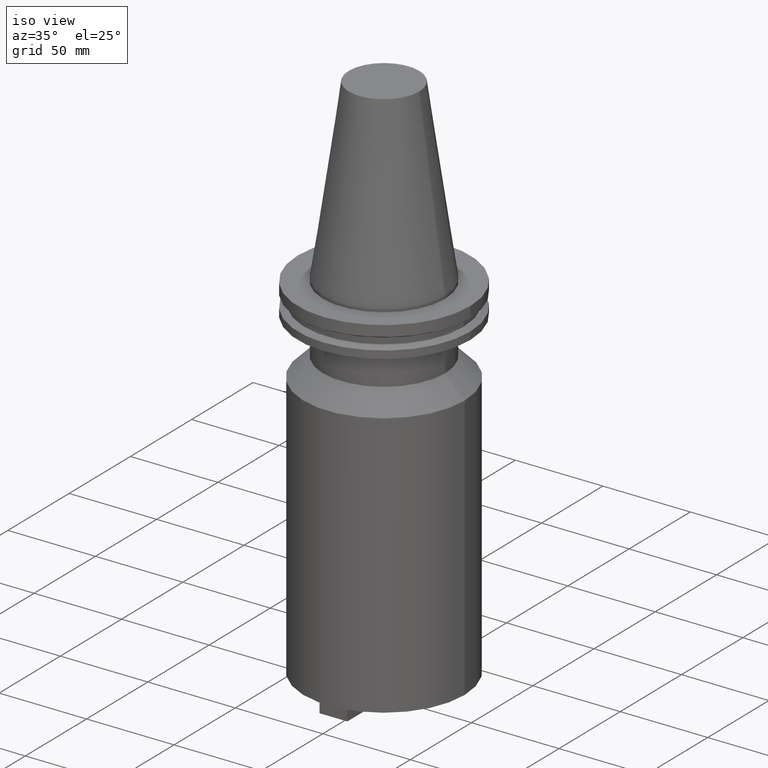
[diagram: clean part render]
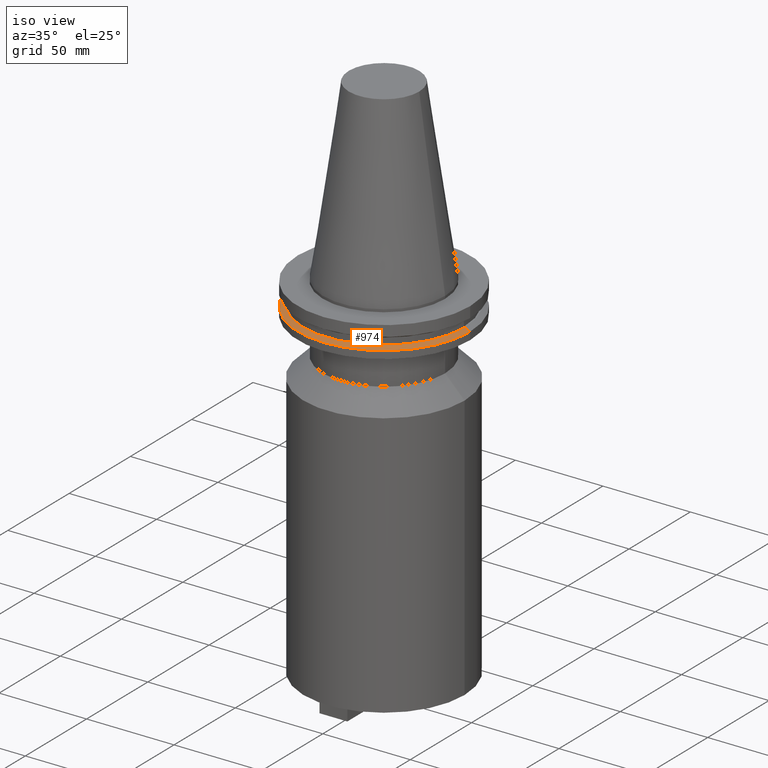
[diagram: same view with one face highlighted and labeled with its STEP entity id]
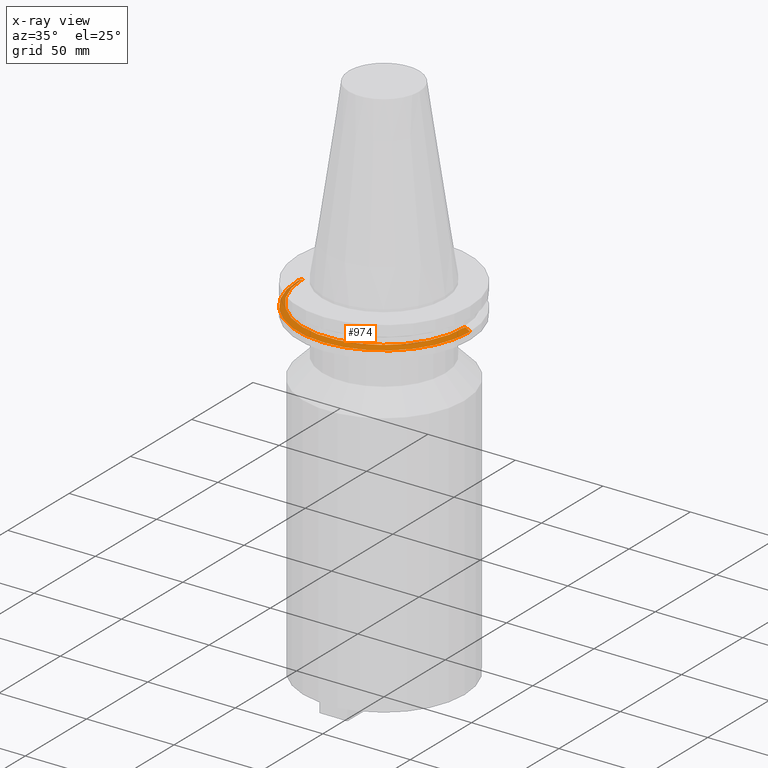
[diagram: x-ray of the same camera — body ghosted, the highlighted face saturated]
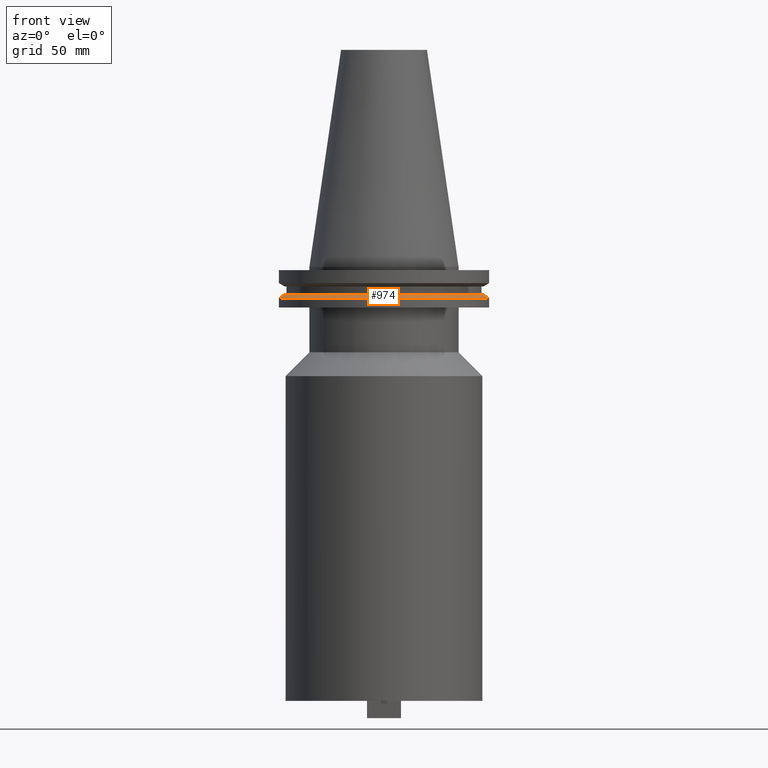
[diagram: same view with one face highlighted and labeled with its STEP entity id]
A machine part, iso view. The second image highlights one B-rep face of the part: STEP entity #974.
The next image is the same camera in x-ray: the body ghosted, the highlighted face saturated — about 0% of this face is hidden behind the body in this view.
A second angle (front view) of the same face is appended — the face is thin or edge-on in the first view.
In plain terms, the highlighted conical surface has half-angle 60 deg.
Its self-contained STEP definition (entity closure, byte-faithful):
#9 = ORIENTED_EDGE ( 'NONE', *, *, #872, .T. ) ;
#25 = DIRECTION ( 'NONE',  ( -0.000000000000000000, -0.000000000000000000, 1.000000000000000000 ) ) ;
#37 = CARTESIAN_POINT ( 'NONE',  ( 0.000000000000000000, 0.000000000000000000, -14.65761014474876944 ) ) ;
#201 = LINE ( 'NONE', #311, #964 ) ;
#227 = CIRCLE ( 'NONE', #352, 49.21499999999998920 ) ;
#236 = ORIENTED_EDGE ( 'NONE', *, *, #627, .F. ) ;
#240 = VERTEX_POINT ( 'NONE', #562 ) ;
#277 = DIRECTION ( 'NONE',  ( 1.000000000000000000, 0.000000000000000000, 0.000000000000000000 ) ) ;
#302 = VERTEX_POINT ( 'NONE', #694 ) ;
#303 = CIRCLE ( 'NONE', #464, 46.43919780457007818 ) ;
#311 = CARTESIAN_POINT ( 'NONE',  ( -49.21499999999998920, 0.000000000000000000, -14.65761014474876944 ) ) ;
#333 = CARTESIAN_POINT ( 'NONE',  ( 49.21499999999998920, 0.000000000000000000, -14.65761014474876944 ) ) ;
#352 = AXIS2_PLACEMENT_3D ( 'NONE', #509, #692, #277 ) ;
#364 = DIRECTION ( 'NONE',  ( 1.000000000000000000, 0.000000000000000000, 0.000000000000000000 ) ) ;
#385 = DIRECTION ( 'NONE',  ( 0.000000000000000000, 0.000000000000000000, -1.000000000000000000 ) ) ;
#414 = VERTEX_POINT ( 'NONE', #596 ) ;
#456 = DIRECTION ( 'NONE',  ( -1.000000000000000000, 0.000000000000000000, 0.000000000000000000 ) ) ;
#464 = AXIS2_PLACEMENT_3D ( 'NONE', #789, #25, #364 ) ;
#509 = CARTESIAN_POINT ( 'NONE',  ( 0.000000000000000000, 0.000000000000000000, -14.65761014474876944 ) ) ;
#562 = CARTESIAN_POINT ( 'NONE',  ( 46.43919780457007818, 5.857130358318725715E-15, -13.05499999999999794 ) ) ;
#579 = EDGE_CURVE ( 'NONE', #302, #414, #201, .T. ) ;
#596 = CARTESIAN_POINT ( 'NONE',  ( -49.21499999999998920, 6.027099222003697037E-15, -14.65761014474876944 ) ) ;
#625 = VERTEX_POINT ( 'NONE', #333 ) ;
#627 = EDGE_CURVE ( 'NONE', #240, #625, #1001, .T. ) ;
#650 = DIRECTION ( 'NONE',  ( -0.8660254037844169472, 0.000000000000000000, -0.5000000000000375255 ) ) ;
#692 = DIRECTION ( 'NONE',  ( -0.000000000000000000, -0.000000000000000000, 1.000000000000000000 ) ) ;
#694 = CARTESIAN_POINT ( 'NONE',  ( -46.43919780457007818, 0.000000000000000000, -13.05499999999999794 ) ) ;
#711 = ORIENTED_EDGE ( 'NONE', *, *, #579, .T. ) ;
#729 = CONICAL_SURFACE ( 'NONE', #1080, 49.21499999999998920, 1.047197551196554333 ) ;
#789 = CARTESIAN_POINT ( 'NONE',  ( 0.000000000000000000, 0.000000000000000000, -13.05499999999999794 ) ) ;
#832 = DIRECTION ( 'NONE',  ( 0.8660254037844169472, 1.060575238724880168E-16, -0.5000000000000375255 ) ) ;
#872 = EDGE_CURVE ( 'NONE', #414, #625, #227, .T. ) ;
#883 = EDGE_CURVE ( 'NONE', #302, #240, #303, .T. ) ;
#904 = VECTOR ( 'NONE', #832, 1000.000000000000114 ) ;
#956 = EDGE_LOOP ( 'NONE', ( #236, #978, #711, #9 ) ) ;
#964 = VECTOR ( 'NONE', #650, 1000.000000000000114 ) ;
#974 = ADVANCED_FACE ( 'NONE', ( #1072 ), #729, .T. ) ;
#978 = ORIENTED_EDGE ( 'NONE', *, *, #883, .F. ) ;
#1001 = LINE ( 'NONE', #1098, #904 ) ;
#1072 = FACE_OUTER_BOUND ( 'NONE', #956, .T. ) ;
#1080 = AXIS2_PLACEMENT_3D ( 'NONE', #37, #385, #456 ) ;
#1098 = CARTESIAN_POINT ( 'NONE',  ( 49.21499999999998920, 6.027099222003697037E-15, -14.65761014474876944 ) ) ;